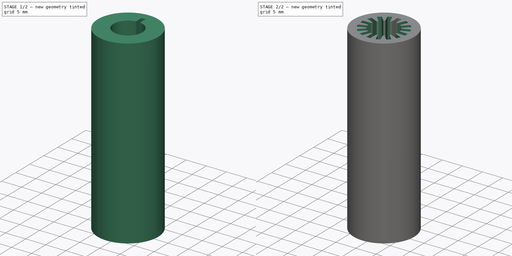
[diagram: build sequence overview — one tinted view per stage of 2, left to right]
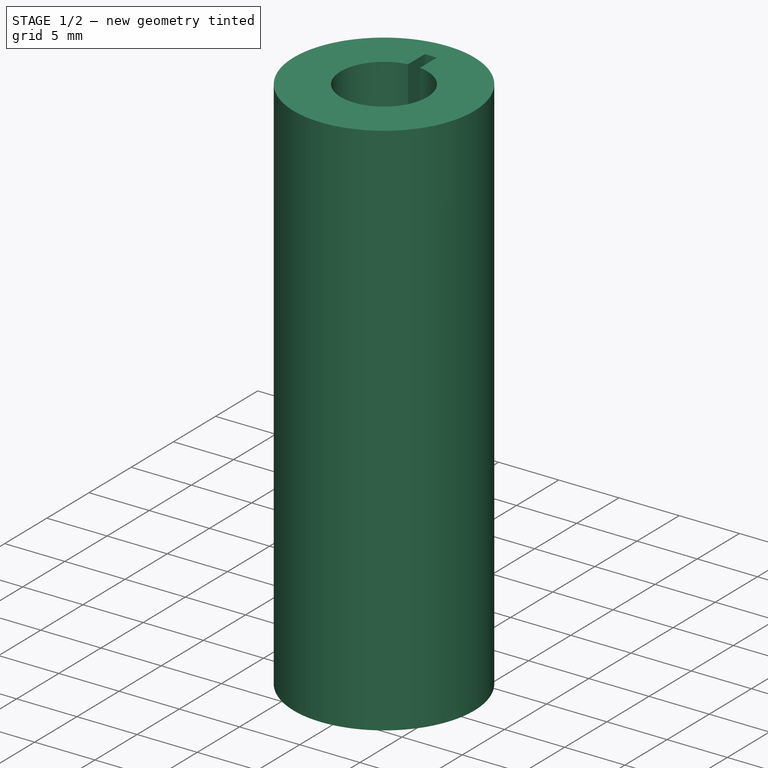
[diagram: stage 1 of 2 — iso view after this stage's code; geometry added in this stage tinted green]
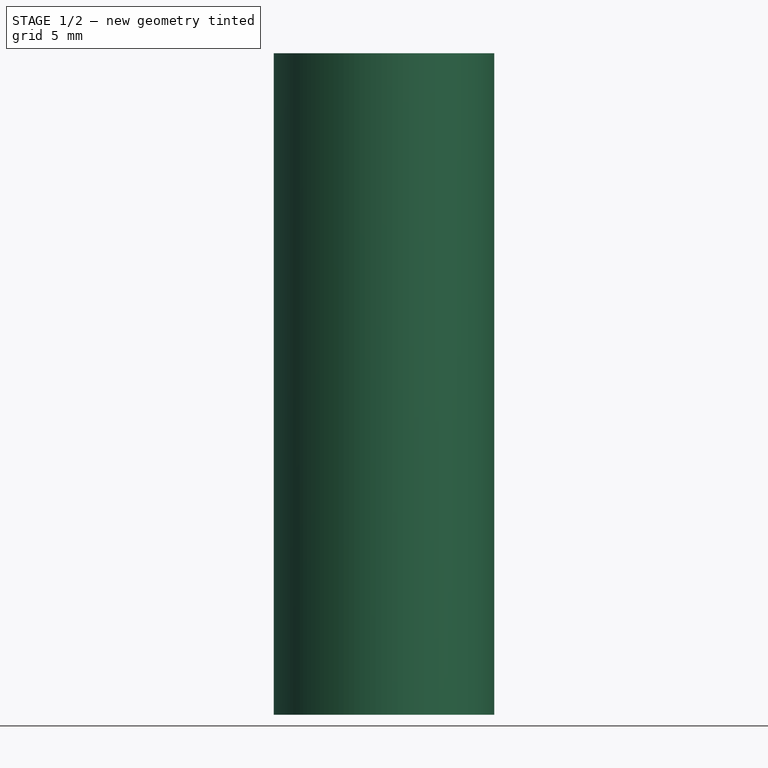
[diagram: stage 1 of 2 — front view after this stage's code; geometry added in this stage tinted green]
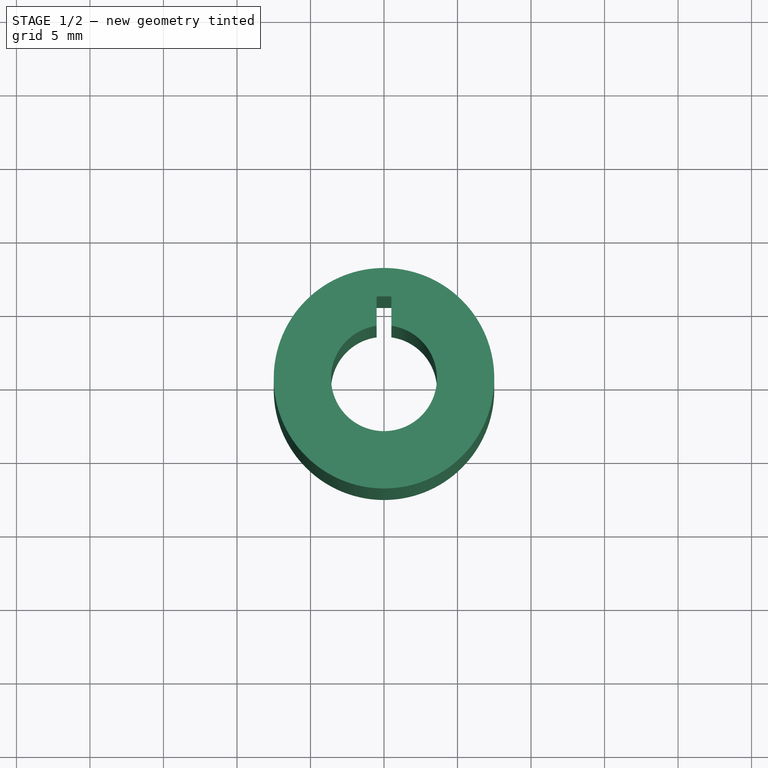
[diagram: stage 1 of 2 — top view after this stage's code; geometry added in this stage tinted green]
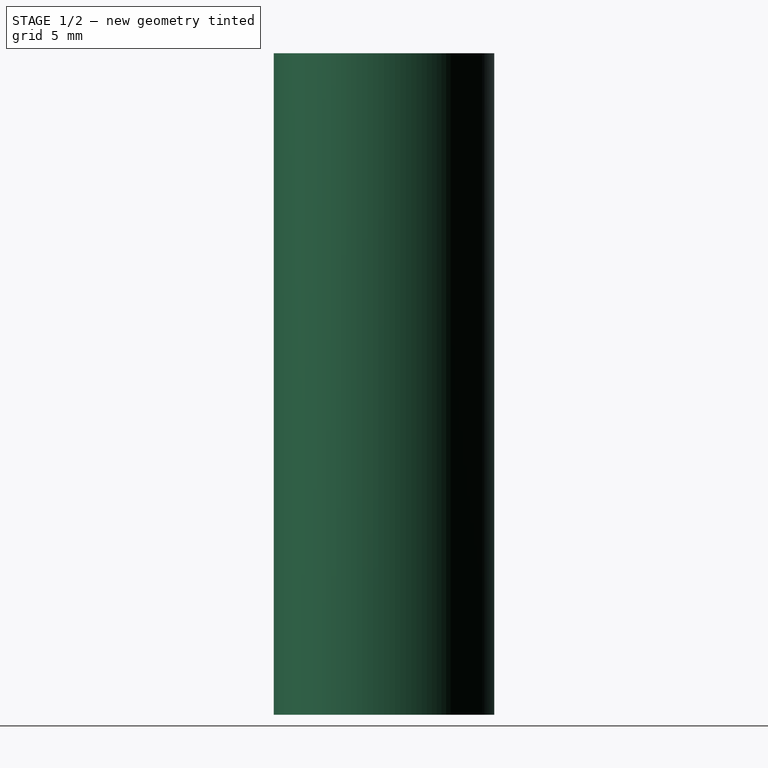
[diagram: stage 1 of 2 — right view after this stage's code; geometry added in this stage tinted green]
FCSTD DOCUMENT  (FreeCAD 0.19R24276 (Git))
Label: LM8LUU
License: All rights reserved
LicenseURL: http://en.wikipedia.org/wiki/All_rights_reserved
objects: Sketcher::SketchObject×2, Spreadsheet::Sheet×1, PartDesign::Pad×1, PartDesign::Pocket×1, PartDesign::PolarPattern×1, PartDesign::Body×1
note: 8 computed .brp shape members not serialized (recipe doc carries the construction recipe); baked Part::Feature solids carry a one-line shape summary decoded from their .brp

FEATURE [Spreadsheet::Sheet] Spreadsheet  label="Dimensions"
  cells = A1=Length; B1(Length)==45mm; A2=OuterRadius; B2(OuterRadius)==15mm / 2; A3=InnerRadius; B3(InnerRadius)==3.6mm; A4=LengthToRidge; B4(LengthToRidge)==5mm; A5=RidgeLength; B5(RidgeLength)==1.1mm; A6=RidgeDepth; B6(RidgeDepth)==0.7mm / 2; A7=GrooveOutterSeparation; B7(GrooveOutterSeparation)==1mm; A8=GrooveInnerSeparation; B8(GrooveInnerSeparation)==1mm; A9=GrooveDepth; B9(GrooveDepth)==2mm
FEATURE [Sketcher::SketchObject] Sketch  label="Sketch_MainTube"
  FullyConstrained = true
  MapMode = 5
  Support = -> [XY_Plane]
  expr: Constraints[1] = <<Dimensions>>.OuterRadius
  expr: Constraints[3] = <<Dimensions>>.InnerRadius
  sketch-geometry (2):
    g0: Circle CenterX=0 CenterY=0 CenterZ=0 NormalX=0 NormalY=0 NormalZ=1 AngleXU=0 Radius=7.5
    g1: Circle CenterX=0 CenterY=0 CenterZ=0 NormalX=0 NormalY=0 NormalZ=1 AngleXU=0 Radius=3.6
  constraints (4):
    c: Coincident(g0,g-1)
    c: Radius(g0) = 7.5
    c: Coincident(g1,g0)
    c: Radius(g1) = 3.6
FEATURE [PartDesign::Pad] Pad  label="Pad_MainTube"
  AllowMultiFace = false
  Direction = (1,1,1)
  Length = 45
  Length2 = 100
  Profile = -> Sketch
  Type = 0
  expr: Length = <<Dimensions>>.Length
FEATURE [Sketcher::SketchObject] Sketch001  label="Sketch_GrooveTemplate"
  FullyConstrained = true
  MapMode = 5
  Placement = pos=(0,0,45) rot=(0,0,1;0rad)
  Support = -> [Pad]
  expr: Constraints[11] = <<Dimensions>>.GrooveOutterSeparation / 2
  expr: Constraints[10] = <<Dimensions>>.InnerRadius
  expr: Constraints[9] = <<Dimensions>>.InnerRadius
  expr: Constraints[8] = <<Dimensions>>.GrooveInnerSeparation
  expr: Constraints[7] = <<Dimensions>>.GrooveOutterSeparation
  expr: Constraints[6] = Spreadsheet.GrooveDepth
  sketch-geometry (4):
    g0: LineSegment StartX=-0.5 StartY=3.56511 StartZ=0 EndX=-0.5 EndY=5.56511 EndZ=0
    g1: LineSegment StartX=-0.5 StartY=5.56511 StartZ=0 EndX=0.5 EndY=5.56511 EndZ=0
    g2: LineSegment StartX=0.5 StartY=5.56511 StartZ=0 EndX=0.5 EndY=3.56511 EndZ=0
    g3: LineSegment StartX=-0.5 StartY=3.56511 StartZ=0 EndX=0.5 EndY=3.56511 EndZ=0
  constraints (12):
    c: Coincident(g3,g0)
    c: Coincident(g3,g2)
    c: Horizontal(g3)
    c: Horizontal(g1)
    c: Coincident(g1,g2)
    c: Coincident(g1,g0)
    c: DistanceY(g2,g1) = 2
    c: DistanceX(g1,g1) = 1
    c: DistanceX(g3,g3) = 1
    c: Distance(g-1,g2) = 3.6
    c: Distance(g-1,g0) = 3.6
    c: DistanceX(g-1,g1) = 0.5
FEATURE [PartDesign::Pocket] Pocket  label="Pocket_GrooveTemplate"
  AllowMultiFace = false
  BaseFeature = -> Pad
  Length = 45
  Length2 = 100
  Profile = -> Sketch001
  Type = 0
  expr: Length = <<Dimensions>>.Length
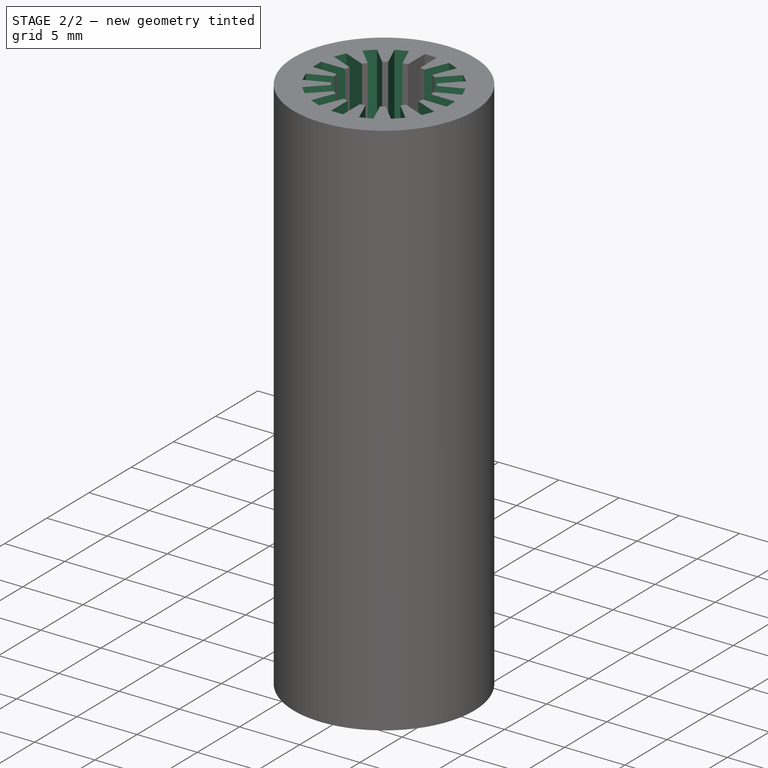
[diagram: stage 2 of 2 — iso view after this stage's code; geometry added in this stage tinted green]
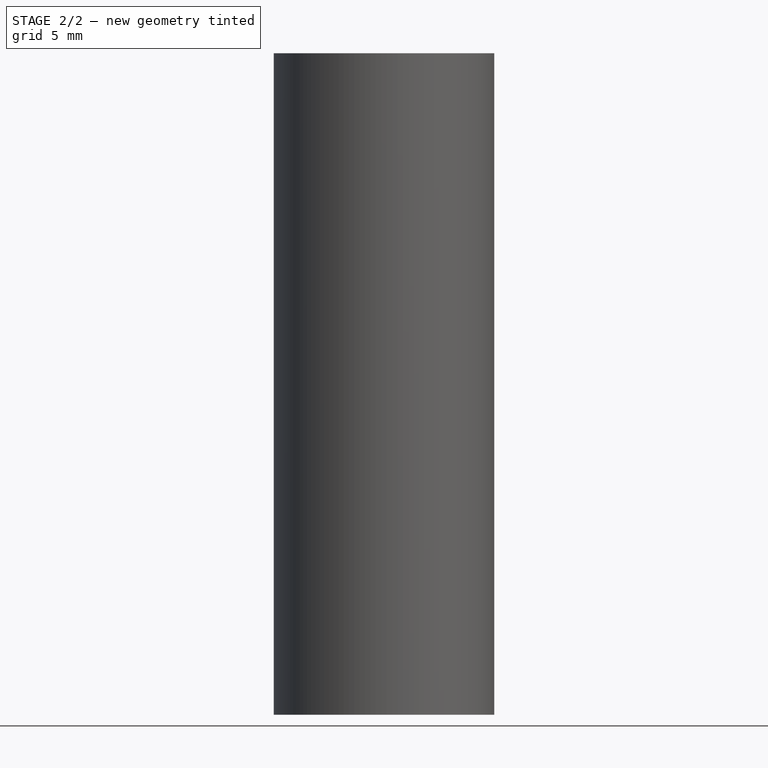
[diagram: stage 2 of 2 — front view after this stage's code; geometry added in this stage tinted green]
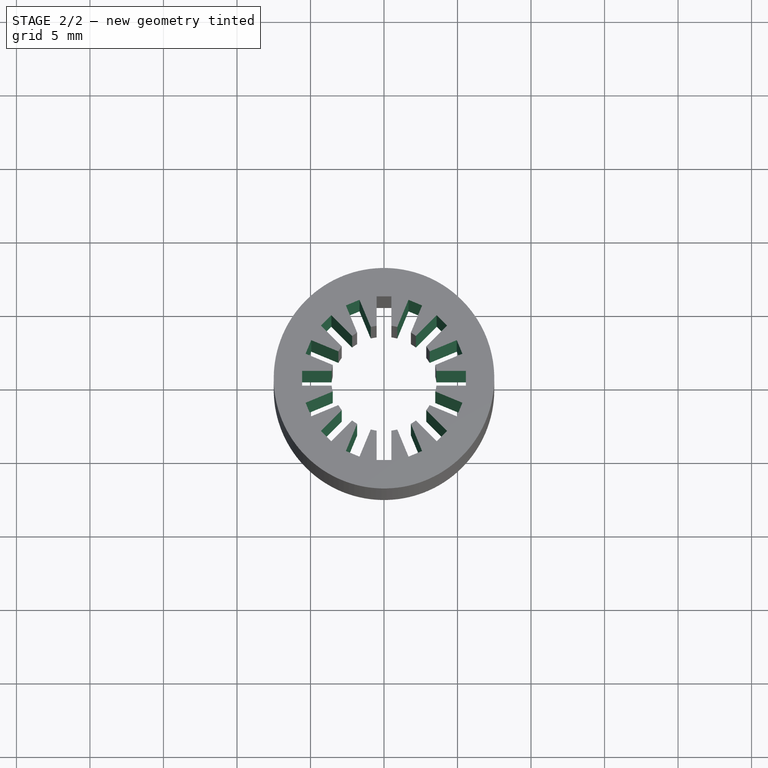
[diagram: stage 2 of 2 — top view after this stage's code; geometry added in this stage tinted green]
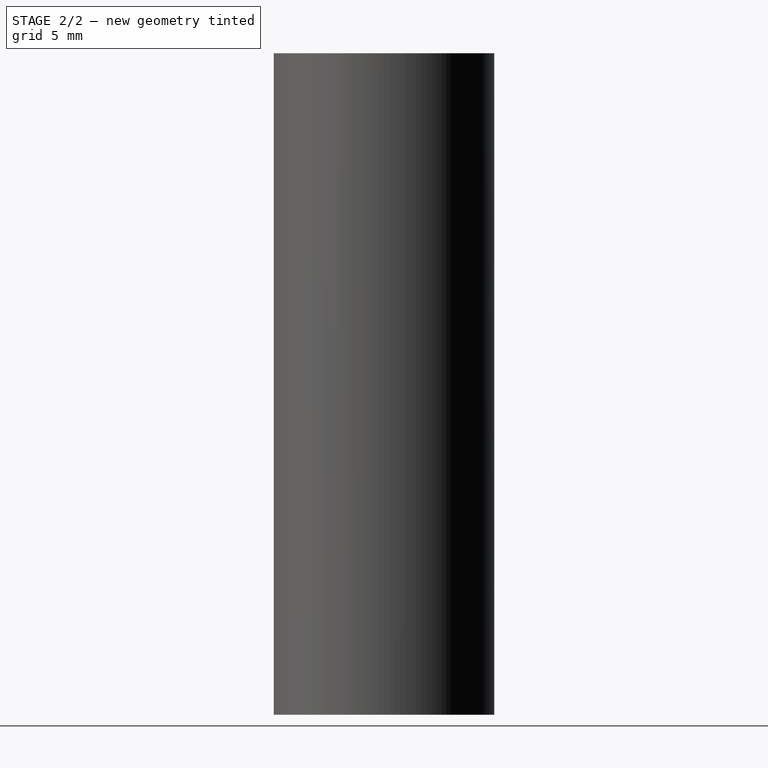
[diagram: stage 2 of 2 — right view after this stage's code; geometry added in this stage tinted green]
FEATURE [PartDesign::PolarPattern] PolarPattern
  Angle = 360
  Axis = -> Sketch001 [N_Axis]
  BaseFeature = -> Pocket
  Occurrences = 16
  Originals = -> [Pocket]
FEATURE [PartDesign::Body] Body  label="LM8LUU"
  Group = -> [Sketch,Pad,Sketch001,Pocket,PolarPattern]
  Origin = -> Origin
  Tip = -> PolarPattern
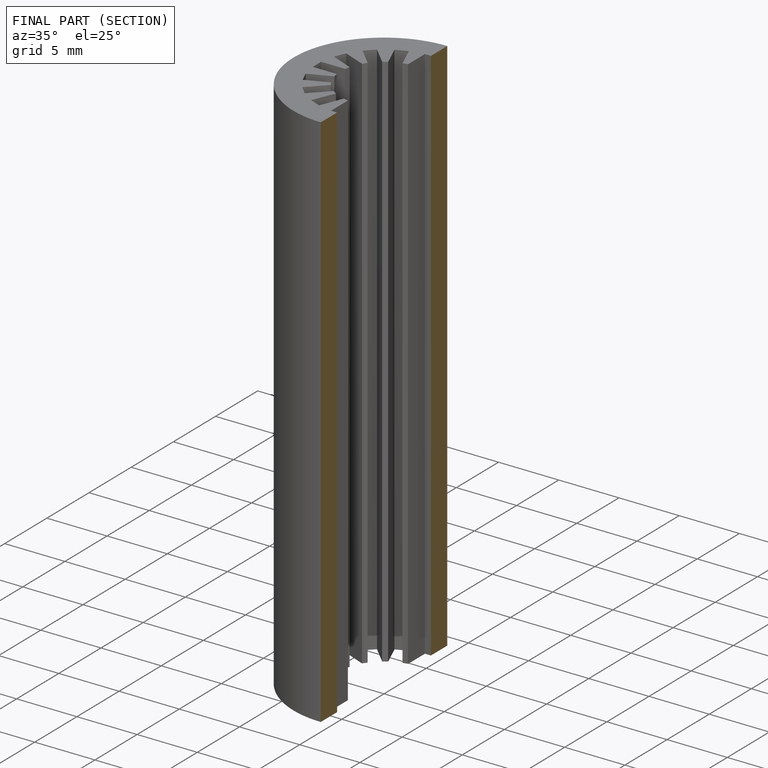
[diagram: finished part — half-section view (interior)]
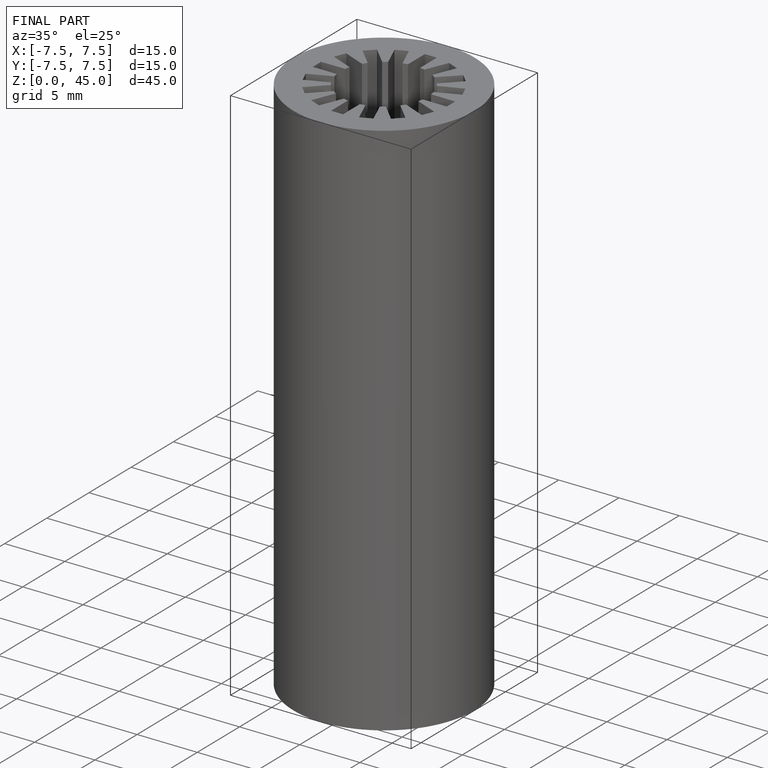
[diagram: finished part — iso view with bounding-box wireframe]
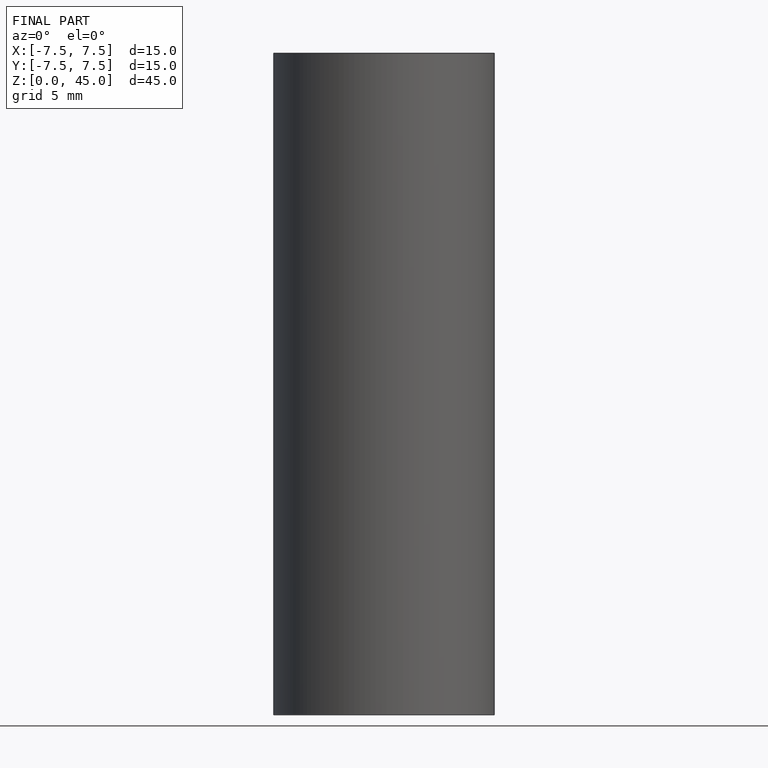
[diagram: finished part — front view with bounding-box wireframe]
